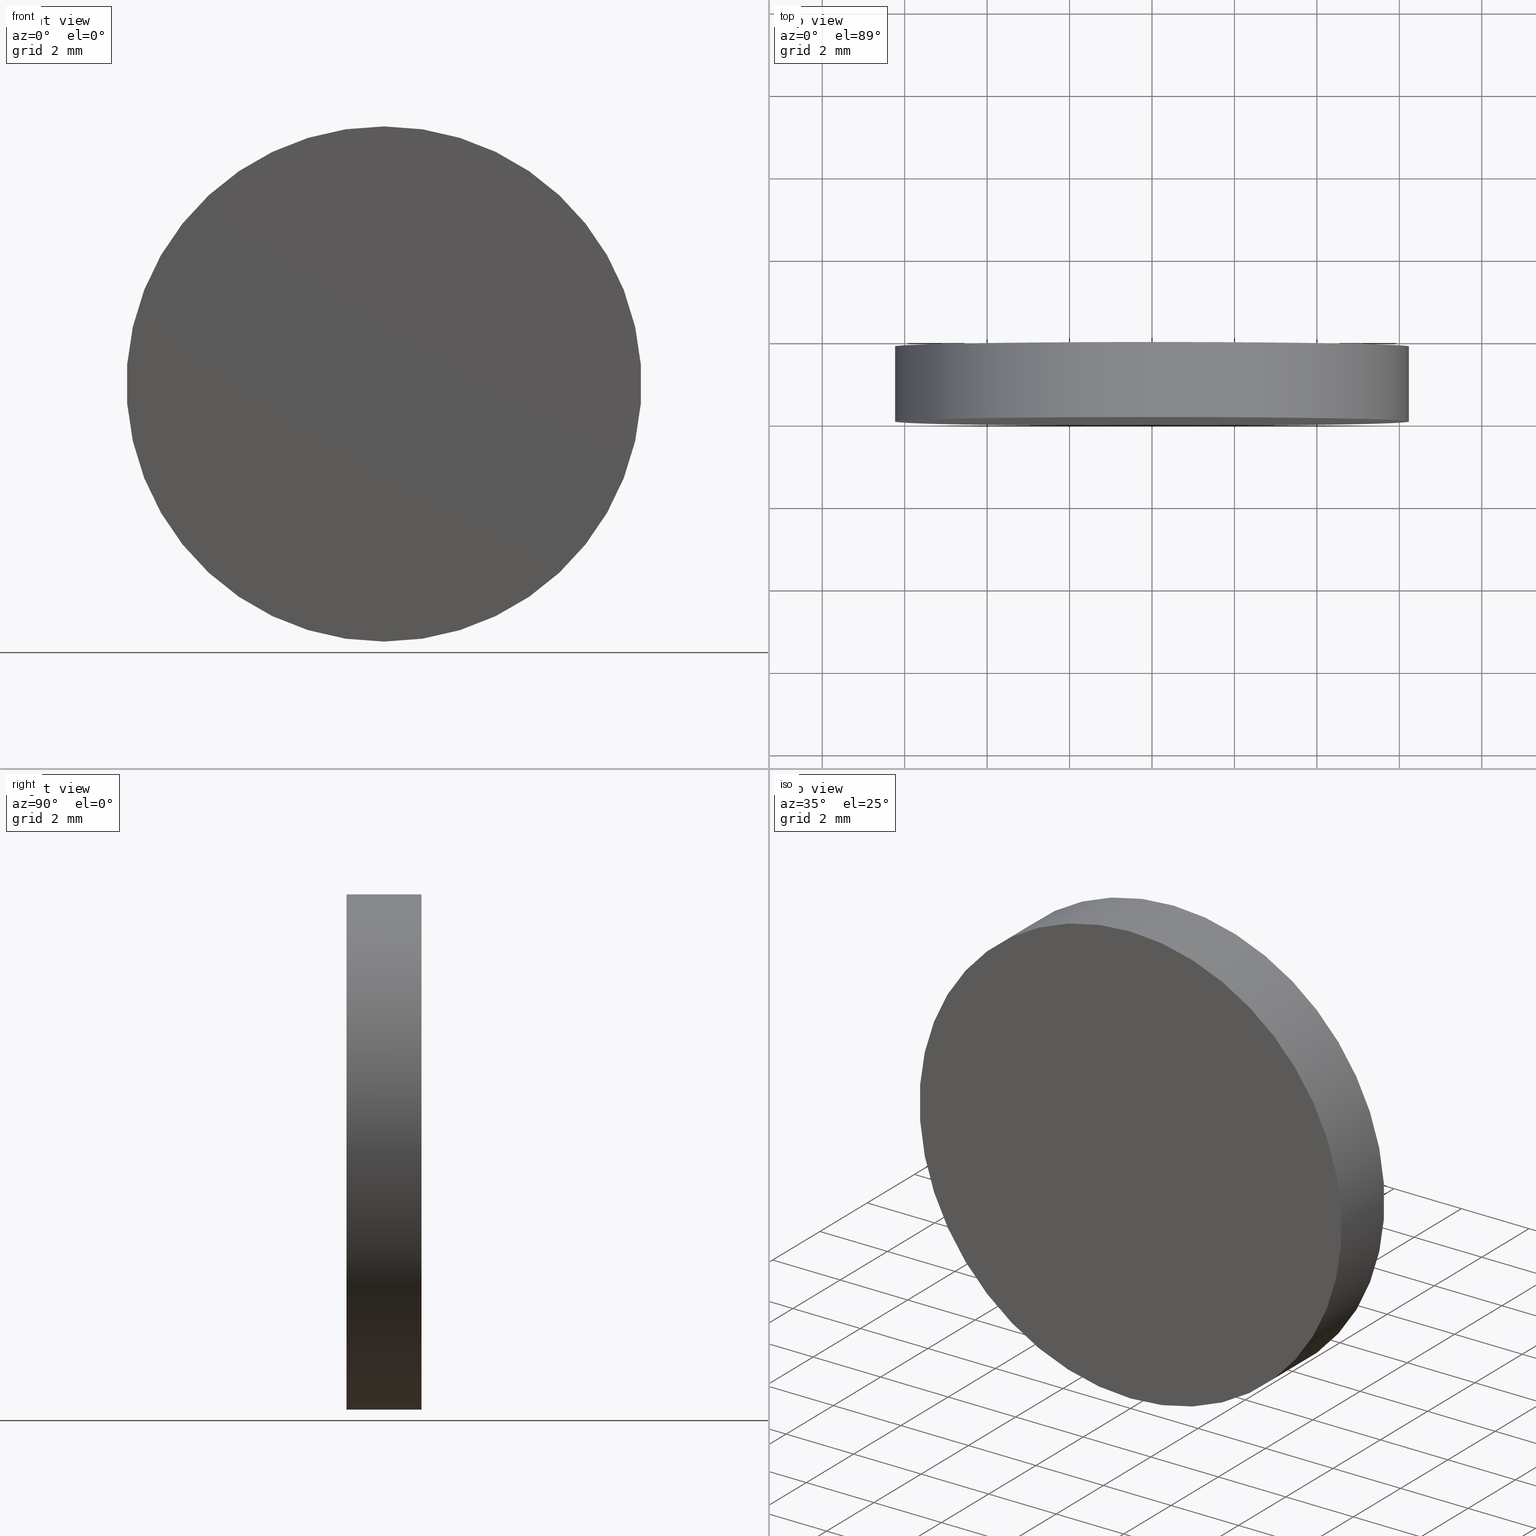
[diagram: canonical four-view strip — front | top / right | iso, engineering-drawing reading convention]
A machine part, canonical four-view strip (front | top / right | iso — engineering-drawing reading convention). The complete STEP part file that produces these views, byte-faithful:
ISO-10303-21;
HEADER;
FILE_DESCRIPTION (( 'STEP AP214' ),
    '1' );
FILE_NAME ('248574.STEP',
    '2019-08-02T08:36:57',
    ( 'user' ),
    ( '΢���й�' ),
    'SwSTEP 2.0',
    'SolidWorks 2016',
    '' );
FILE_SCHEMA (( 'AUTOMOTIVE_DESIGN' ));
ENDSEC;

DATA;
#1 = EDGE_CURVE ( 'NONE', #84, #53, #130, .T. ) ;
#2 = AXIS2_PLACEMENT_3D ( 'NONE', #100, #20, #91 ) ;
#3 = DIRECTION ( 'NONE',  ( 0.0000000000000000000, 0.0000000000000000000, 1.000000000000000000 ) ) ;
#4 =( NAMED_UNIT ( * ) PLANE_ANGLE_UNIT ( ) SI_UNIT ( $, .RADIAN. ) );
#5 = CARTESIAN_POINT ( 'NONE',  ( 0.0000000000000000000, 0.0000000000000000000, 0.0000000000000000000 ) ) ;
#6 = MANIFOLD_SOLID_BREP ( '͹̨-����1', #22 ) ;
#7 =( GEOMETRIC_REPRESENTATION_CONTEXT ( 3 ) GLOBAL_UNCERTAINTY_ASSIGNED_CONTEXT ( ( #54 ) ) GLOBAL_UNIT_ASSIGNED_CONTEXT ( ( #80, #138, #72 ) ) REPRESENTATION_CONTEXT ( 'NONE', 'WORKASPACE' ) );
#8 = CARTESIAN_POINT ( 'NONE',  ( 0.0000000000000000000, 1.820000000000000100, -6.250000000000000000 ) ) ;
#9 = FILL_AREA_STYLE ('',( #58 ) ) ;
#10 = SURFACE_STYLE_USAGE ( .BOTH. , #14 ) ;
#11 = EDGE_CURVE ( 'NONE', #84, #12, #64, .T. ) ;
#12 = VERTEX_POINT ( 'NONE', #41 ) ;
#13 = SURFACE_STYLE_FILL_AREA ( #115 ) ;
#14 = SURFACE_SIDE_STYLE ('',( #103 ) ) ;
#15 =( NAMED_UNIT ( * ) SI_UNIT ( $, .STERADIAN. ) SOLID_ANGLE_UNIT ( ) );
#16 = PRESENTATION_LAYER_ASSIGNMENT (  '', '', ( #122 ) ) ;
#17 = DIRECTION ( 'NONE',  ( 0.0000000000000000000, -0.0000000000000000000, 1.000000000000000000 ) ) ;
#18 = ADVANCED_FACE ( 'NONE', ( #131 ), #86, .T. ) ;
#19 = ORIENTED_EDGE ( 'NONE', *, *, #21, .T. ) ;
#20 = DIRECTION ( 'NONE',  ( 0.0000000000000000000, 1.000000000000000000, 0.0000000000000000000 ) ) ;
#21 = EDGE_CURVE ( 'NONE', #12, #30, #28, .T. ) ;
#22 = CLOSED_SHELL ( 'NONE', ( #18, #109, #111, #101 ) ) ;
#23 = CIRCLE ( 'NONE', #93, 6.250000000000000000 ) ;
#24 = COLOUR_RGB ( '',1.000000000000000000, 1.000000000000000000, 1.000000000000000000 ) ;
#25 = AXIS2_PLACEMENT_3D ( 'NONE', #5, #78, #135 ) ;
#26 = ORIENTED_EDGE ( 'NONE', *, *, #11, .T. ) ;
#27 =( GEOMETRIC_REPRESENTATION_CONTEXT ( 3 ) GLOBAL_UNCERTAINTY_ASSIGNED_CONTEXT ( ( #40 ) ) GLOBAL_UNIT_ASSIGNED_CONTEXT ( ( #87, #4, #76 ) ) REPRESENTATION_CONTEXT ( 'NONE', 'WORKASPACE' ) );
#28 = CIRCLE ( 'NONE', #67, 6.250000000000000000 ) ;
#29 = FACE_OUTER_BOUND ( 'NONE', #51, .T. ) ;
#30 = VERTEX_POINT ( 'NONE', #47 ) ;
#31 = MECHANICAL_DESIGN_GEOMETRIC_PRESENTATION_REPRESENTATION (  '', ( #129 ), #7 ) ;
#32 =( LENGTH_UNIT ( ) NAMED_UNIT ( * ) SI_UNIT ( .MILLI., .METRE. ) );
#33 = CARTESIAN_POINT ( 'NONE',  ( 0.0000000000000000000, 0.0000000000000000000, 0.0000000000000000000 ) ) ;
#34 = PRODUCT_RELATED_PRODUCT_CATEGORY ( 'part', '', ( #43 ) ) ;
#35 = PLANE ( 'NONE',  #126 ) ;
#36 = ORIENTED_EDGE ( 'NONE', *, *, #49, .T. ) ;
#37 =( GEOMETRIC_REPRESENTATION_CONTEXT ( 3 ) GLOBAL_UNCERTAINTY_ASSIGNED_CONTEXT ( ( #102 ) ) GLOBAL_UNIT_ASSIGNED_CONTEXT ( ( #32, #97, #15 ) ) REPRESENTATION_CONTEXT ( 'NONE', 'WORKASPACE' ) );
#38 = DIRECTION ( 'NONE',  ( -0.0000000000000000000, -1.000000000000000000, -0.0000000000000000000 ) ) ;
#39 = EDGE_CURVE ( 'NONE', #53, #30, #56, .T. ) ;
#40 = UNCERTAINTY_MEASURE_WITH_UNIT (LENGTH_MEASURE( 1.000000000000000100E-005 ), #87, 'distance_accuracy_value', 'NONE');
#41 = CARTESIAN_POINT ( 'NONE',  ( 7.654042494670957600E-016, 0.0000000000000000000, 6.250000000000000000 ) ) ;
#42 = SURFACE_SIDE_STYLE ('',( #13 ) ) ;
#43 = PRODUCT ( '248574', '248574', '', ( #134 ) ) ;
#44 = DIRECTION ( 'NONE',  ( 0.0000000000000000000, -0.0000000000000000000, 1.000000000000000000 ) ) ;
#45 = DIRECTION ( 'NONE',  ( 0.0000000000000000000, 1.000000000000000000, 0.0000000000000000000 ) ) ;
#46 = DIRECTION ( 'NONE',  ( 0.0000000000000000000, 0.0000000000000000000, -1.000000000000000000 ) ) ;
#47 = CARTESIAN_POINT ( 'NONE',  ( 0.0000000000000000000, 0.0000000000000000000, -6.250000000000000000 ) ) ;
#48 = ORIENTED_EDGE ( 'NONE', *, *, #1, .T. ) ;
#49 = EDGE_CURVE ( 'NONE', #30, #12, #81, .T. ) ;
#50 = ORIENTED_EDGE ( 'NONE', *, *, #83, .F. ) ;
#51 = EDGE_LOOP ( 'NONE', ( #114, #48 ) ) ;
#52 = ORIENTED_EDGE ( 'NONE', *, *, #39, .F. ) ;
#53 = VERTEX_POINT ( 'NONE', #8 ) ;
#54 = UNCERTAINTY_MEASURE_WITH_UNIT (LENGTH_MEASURE( 1.000000000000000100E-005 ), #80, 'distance_accuracy_value', 'NONE');
#55 = APPLICATION_CONTEXT ( 'automotive_design' ) ;
#56 = LINE ( 'NONE', #137, #110 ) ;
#57 = FILL_AREA_STYLE_COLOUR ( '', #24 ) ;
#58 = FILL_AREA_STYLE_COLOUR ( '', #140 ) ;
#59 = DIRECTION ( 'NONE',  ( -0.0000000000000000000, -1.000000000000000000, -0.0000000000000000000 ) ) ;
#60 = ORIENTED_EDGE ( 'NONE', *, *, #1, .F. ) ;
#61 = DIRECTION ( 'NONE',  ( 0.0000000000000000000, 1.000000000000000000, 0.0000000000000000000 ) ) ;
#62 = DIRECTION ( 'NONE',  ( 0.0000000000000000000, 0.0000000000000000000, -1.000000000000000000 ) ) ;
#63 = ORIENTED_EDGE ( 'NONE', *, *, #21, .F. ) ;
#64 = LINE ( 'NONE', #95, #139 ) ;
#65 = FACE_OUTER_BOUND ( 'NONE', #113, .T. ) ;
#66 = PRODUCT_DEFINITION ( 'δ֪', '', #73, #128 ) ;
#67 = AXIS2_PLACEMENT_3D ( 'NONE', #127, #61, #118 ) ;
#68 = ORIENTED_EDGE ( 'NONE', *, *, #49, .F. ) ;
#69 = APPLICATION_CONTEXT ( 'automotive_design' ) ;
#70 = APPLICATION_PROTOCOL_DEFINITION ( 'draft international standard', 'automotive_design', 1998, #55 ) ;
#71 = CARTESIAN_POINT ( 'NONE',  ( 0.0000000000000000000, 0.0000000000000000000, 0.0000000000000000000 ) ) ;
#72 =( NAMED_UNIT ( * ) SI_UNIT ( $, .STERADIAN. ) SOLID_ANGLE_UNIT ( ) );
#73 = PRODUCT_DEFINITION_FORMATION_WITH_SPECIFIED_SOURCE ( '�κ�', '', #43, .NOT_KNOWN. ) ;
#74 = AXIS2_PLACEMENT_3D ( 'NONE', #77, #116, #44 ) ;
#75 = DIRECTION ( 'NONE',  ( 1.000000000000000000, 0.0000000000000000000, 0.0000000000000000000 ) ) ;
#76 =( NAMED_UNIT ( * ) SI_UNIT ( $, .STERADIAN. ) SOLID_ANGLE_UNIT ( ) );
#77 = CARTESIAN_POINT ( 'NONE',  ( 0.0000000000000000000, 1.820000000000000100, 0.0000000000000000000 ) ) ;
#78 = DIRECTION ( 'NONE',  ( 0.0000000000000000000, 1.000000000000000000, 0.0000000000000000000 ) ) ;
#79 = ORIENTED_EDGE ( 'NONE', *, *, #39, .T. ) ;
#80 =( LENGTH_UNIT ( ) NAMED_UNIT ( * ) SI_UNIT ( .MILLI., .METRE. ) );
#81 = CIRCLE ( 'NONE', #25, 6.250000000000000000 ) ;
#82 = ORIENTED_EDGE ( 'NONE', *, *, #11, .F. ) ;
#83 = EDGE_CURVE ( 'NONE', #53, #84, #23, .T. ) ;
#84 = VERTEX_POINT ( 'NONE', #89 ) ;
#85 = AXIS2_PLACEMENT_3D ( 'NONE', #90, #38, #62 ) ;
#86 = CYLINDRICAL_SURFACE ( 'NONE', #85, 6.250000000000000000 ) ;
#87 =( LENGTH_UNIT ( ) NAMED_UNIT ( * ) SI_UNIT ( .MILLI., .METRE. ) );
#88 = CARTESIAN_POINT ( 'NONE',  ( 0.0000000000000000000, 1.820000000000000100, 0.0000000000000000000 ) ) ;
#89 = CARTESIAN_POINT ( 'NONE',  ( 7.654042494670957600E-016, 1.820000000000000100, 6.250000000000000000 ) ) ;
#90 = CARTESIAN_POINT ( 'NONE',  ( 0.0000000000000000000, 1.820000000000000100, 0.0000000000000000000 ) ) ;
#91 = DIRECTION ( 'NONE',  ( 0.0000000000000000000, 0.0000000000000000000, 1.000000000000000000 ) ) ;
#92 = FACE_OUTER_BOUND ( 'NONE', #98, .T. ) ;
#93 = AXIS2_PLACEMENT_3D ( 'NONE', #117, #45, #107 ) ;
#94 = PRESENTATION_STYLE_ASSIGNMENT (( #106 ) ) ;
#95 = CARTESIAN_POINT ( 'NONE',  ( 7.654042494670957600E-016, 1.820000000000000100, 6.250000000000000000 ) ) ;
#96 = PRESENTATION_LAYER_ASSIGNMENT (  '', '', ( #129 ) ) ;
#97 =( NAMED_UNIT ( * ) PLANE_ANGLE_UNIT ( ) SI_UNIT ( $, .RADIAN. ) );
#98 = EDGE_LOOP ( 'NONE', ( #82, #50, #79, #36 ) ) ;
#99 = DIRECTION ( 'NONE',  ( 0.0000000000000000000, 1.000000000000000000, 0.0000000000000000000 ) ) ;
#100 = CARTESIAN_POINT ( 'NONE',  ( 0.0000000000000000000, 1.820000000000000100, 0.0000000000000000000 ) ) ;
#101 = ADVANCED_FACE ( 'NONE', ( #65 ), #35, .F. ) ;
#102 = UNCERTAINTY_MEASURE_WITH_UNIT (LENGTH_MEASURE( 1.000000000000000100E-005 ), #32, 'distance_accuracy_value', 'NONE');
#103 = SURFACE_STYLE_FILL_AREA ( #9 ) ;
#104 = AXIS2_PLACEMENT_3D ( 'NONE', #88, #59, #46 ) ;
#105 = EDGE_LOOP ( 'NONE', ( #60, #26, #19, #52 ) ) ;
#106 = SURFACE_STYLE_USAGE ( .BOTH. , #42 ) ;
#107 = DIRECTION ( 'NONE',  ( 0.0000000000000000000, 0.0000000000000000000, 1.000000000000000000 ) ) ;
#108 = DIRECTION ( 'NONE',  ( -0.0000000000000000000, -1.000000000000000000, -0.0000000000000000000 ) ) ;
#109 = ADVANCED_FACE ( 'NONE', ( #92 ), #133, .T. ) ;
#110 = VECTOR ( 'NONE', #108, 1000.000000000000000 ) ;
#111 = ADVANCED_FACE ( 'NONE', ( #29 ), #125, .T. ) ;
#112 = ADVANCED_BREP_SHAPE_REPRESENTATION ( '248574', ( #6, #119 ), #27 ) ;
#113 = EDGE_LOOP ( 'NONE', ( #68, #63 ) ) ;
#114 = ORIENTED_EDGE ( 'NONE', *, *, #83, .T. ) ;
#115 = FILL_AREA_STYLE ('',( #57 ) ) ;
#116 = DIRECTION ( 'NONE',  ( 0.0000000000000000000, 1.000000000000000000, 0.0000000000000000000 ) ) ;
#117 = CARTESIAN_POINT ( 'NONE',  ( 0.0000000000000000000, 1.820000000000000100, 0.0000000000000000000 ) ) ;
#118 = DIRECTION ( 'NONE',  ( 0.0000000000000000000, 0.0000000000000000000, 1.000000000000000000 ) ) ;
#119 = AXIS2_PLACEMENT_3D ( 'NONE', #33, #3, #75 ) ;
#120 = DIRECTION ( 'NONE',  ( -0.0000000000000000000, -1.000000000000000000, -0.0000000000000000000 ) ) ;
#121 = PRODUCT_DEFINITION_SHAPE ( 'NONE', 'NONE',  #66 ) ;
#122 = STYLED_ITEM ( 'NONE', ( #94 ), #112 ) ;
#123 = MECHANICAL_DESIGN_GEOMETRIC_PRESENTATION_REPRESENTATION (  '', ( #122 ), #37 ) ;
#124 = APPLICATION_PROTOCOL_DEFINITION ( 'draft international standard', 'automotive_design', 1998, #69 ) ;
#125 = PLANE ( 'NONE',  #74 ) ;
#126 = AXIS2_PLACEMENT_3D ( 'NONE', #71, #99, #17 ) ;
#127 = CARTESIAN_POINT ( 'NONE',  ( 0.0000000000000000000, 0.0000000000000000000, 0.0000000000000000000 ) ) ;
#128 = PRODUCT_DEFINITION_CONTEXT ( 'detailed design', #69, 'design' ) ;
#129 = STYLED_ITEM ( 'NONE', ( #136 ), #6 ) ;
#130 = CIRCLE ( 'NONE', #2, 6.250000000000000000 ) ;
#131 = FACE_OUTER_BOUND ( 'NONE', #105, .T. ) ;
#132 = SHAPE_DEFINITION_REPRESENTATION ( #121, #112 ) ;
#133 = CYLINDRICAL_SURFACE ( 'NONE', #104, 6.250000000000000000 ) ;
#134 = PRODUCT_CONTEXT ( 'NONE', #55, 'mechanical' ) ;
#135 = DIRECTION ( 'NONE',  ( 0.0000000000000000000, 0.0000000000000000000, 1.000000000000000000 ) ) ;
#136 = PRESENTATION_STYLE_ASSIGNMENT (( #10 ) ) ;
#137 = CARTESIAN_POINT ( 'NONE',  ( 0.0000000000000000000, 1.820000000000000100, -6.250000000000000000 ) ) ;
#138 =( NAMED_UNIT ( * ) PLANE_ANGLE_UNIT ( ) SI_UNIT ( $, .RADIAN. ) );
#139 = VECTOR ( 'NONE', #120, 1000.000000000000000 ) ;
#140 = COLOUR_RGB ( '',1.000000000000000000, 1.000000000000000000, 1.000000000000000000 ) ;
ENDSEC;
END-ISO-10303-21;
